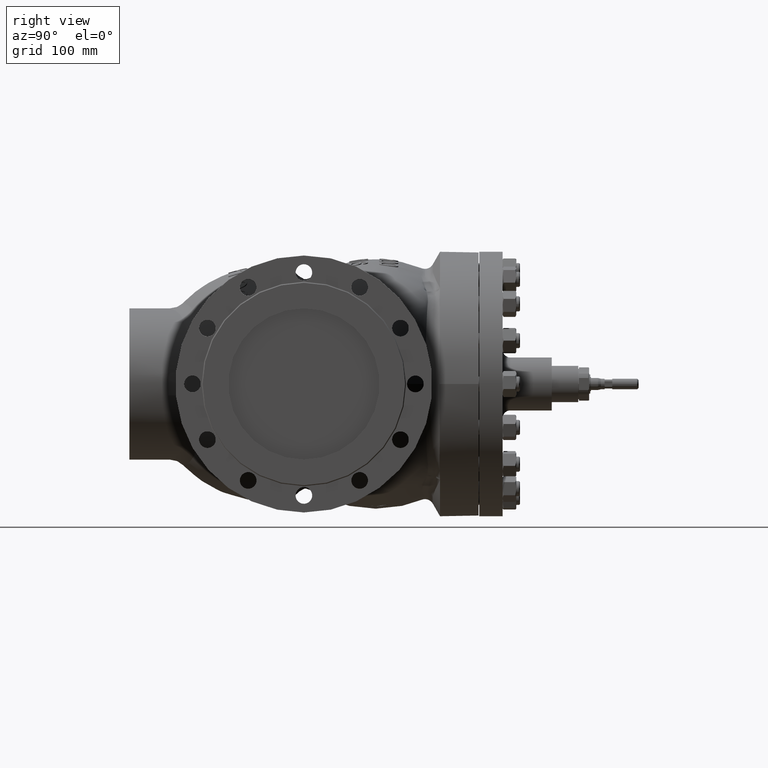
[diagram: clean part render]
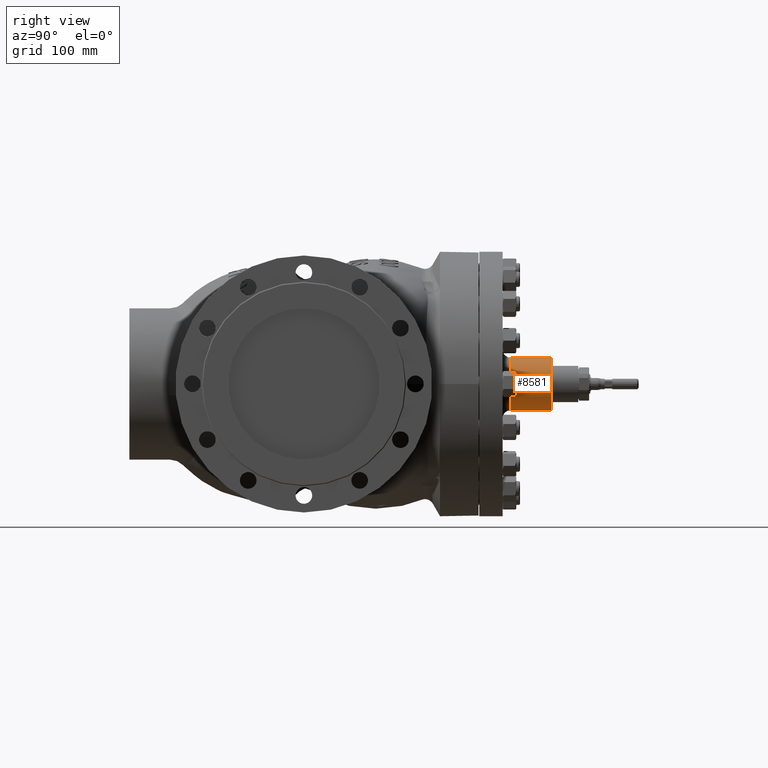
[diagram: same view with one face highlighted and labeled with its STEP entity id]
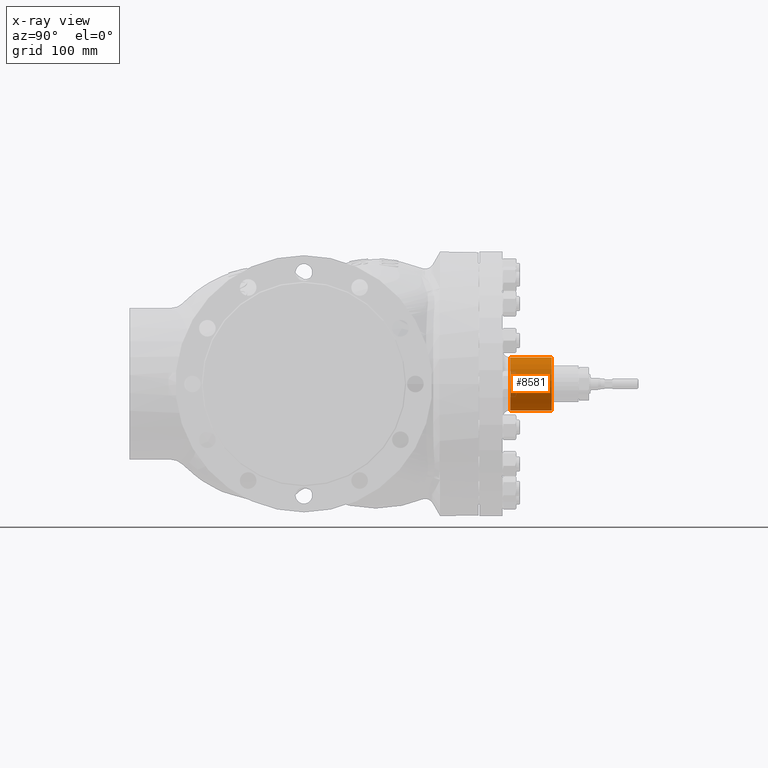
[diagram: x-ray of the same camera — body ghosted, the highlighted face saturated]
A machine part, right view. The second image highlights one B-rep face of the part: STEP entity #8581.
The next image is the same camera in x-ray: the body ghosted, the highlighted face saturated — about 9% of this face is hidden behind the body in this view.
In plain terms, the highlighted cylindrical surface (edge-blend (fillet) strip) has radius 35 mm, axis along (-0, 1, 0).
Its self-contained STEP definition (entity closure, byte-faithful):
#765 = AXIS2_PLACEMENT_3D ( 'NONE', #76322, #230589, #98496 ) ;
#7038 = CARTESIAN_POINT ( 'NONE',  ( 7.285838599102589800E-014, 363.0000000000000600, 1.387778780781445700E-014 ) ) ;
#8581 = ADVANCED_FACE ( 'NONE', ( #192877 ), #134114, .T. ) ;
#14212 = EDGE_LOOP ( 'NONE', ( #256242, #279951, #190798, #15735 ) ) ;
#14375 = CIRCLE ( 'NONE', #171961, 35.00000000000000000 ) ;
#14996 = VECTOR ( 'NONE', #282339, 1000.000000000000000 ) ;
#15735 = ORIENTED_EDGE ( 'NONE', *, *, #264294, .F. ) ;
#22785 = AXIS2_PLACEMENT_3D ( 'NONE', #7038, #183476, #50447 ) ;
#42084 = VERTEX_POINT ( 'NONE', #199840 ) ;
#50447 = DIRECTION ( 'NONE',  ( -1.117161918529064000E-015, 0.0000000000000000000, 1.000000000000000000 ) ) ;
#76229 = CARTESIAN_POINT ( 'NONE',  ( 1.251404949234631000E-013, 328.0000000000000000, -34.99999999999998600 ) ) ;
#76322 = CARTESIAN_POINT ( 'NONE',  ( 7.783968566369226900E-014, 328.0000000000000000, 1.387778780781445700E-014 ) ) ;
#83559 = DIRECTION ( 'NONE',  ( -1.423228477904675500E-016, 1.000000000000000000, 4.953303372370682800E-033 ) ) ;
#87281 = VERTEX_POINT ( 'NONE', #120961 ) ;
#98496 = DIRECTION ( 'NONE',  ( -1.117161918529064000E-015, 0.0000000000000000000, 1.000000000000000000 ) ) ;
#103056 = CIRCLE ( 'NONE', #765, 34.99999999999999300 ) ;
#108048 = LINE ( 'NONE', #181749, #159782 ) ;
#120961 = CARTESIAN_POINT ( 'NONE',  ( 1.251404949234631000E-013, 273.0000000000000000, -34.99999999999999300 ) ) ;
#132156 = LINE ( 'NONE', #283262, #14996 ) ;
#134114 = CYLINDRICAL_SURFACE ( 'NONE', #22785, 35.00000000000000000 ) ;
#152392 = EDGE_CURVE ( 'NONE', #205781, #87281, #14375, .T. ) ;
#159531 = DIRECTION ( 'NONE',  ( -1.423228477904675500E-016, 1.000000000000000000, 4.953303372370682800E-033 ) ) ;
#159782 = VECTOR ( 'NONE', #159531, 1000.000000000000000 ) ;
#171961 = AXIS2_PLACEMENT_3D ( 'NONE', #215645, #83559, #237813 ) ;
#173097 = EDGE_CURVE ( 'NONE', #87281, #192715, #132156, .T. ) ;
#181255 = CARTESIAN_POINT ( 'NONE',  ( 4.265289682941288300E-014, 273.0000000000000000, 35.00000000000001400 ) ) ;
#181749 = CARTESIAN_POINT ( 'NONE',  ( 3.375771884250866000E-014, 363.0000000000000600, 35.00000000000001400 ) ) ;
#183476 = DIRECTION ( 'NONE',  ( -1.423228477904675500E-016, 1.000000000000000000, 4.953303372370682800E-033 ) ) ;
#190798 = ORIENTED_EDGE ( 'NONE', *, *, #243623, .F. ) ;
#192715 = VERTEX_POINT ( 'NONE', #76229 ) ;
#192877 = FACE_OUTER_BOUND ( 'NONE', #14212, .T. ) ;
#199840 = CARTESIAN_POINT ( 'NONE',  ( 3.873901851517503700E-014, 328.0000000000000000, 35.00000000000000700 ) ) ;
#205781 = VERTEX_POINT ( 'NONE', #181255 ) ;
#215645 = CARTESIAN_POINT ( 'NONE',  ( 8.566744229216797400E-014, 273.0000000000000000, 1.387778780781445700E-014 ) ) ;
#230589 = DIRECTION ( 'NONE',  ( -1.423228477904675500E-016, 1.000000000000000000, 4.953303372370682800E-033 ) ) ;
#237813 = DIRECTION ( 'NONE',  ( 1.117161918529064200E-015, 0.0000000000000000000, -1.000000000000000000 ) ) ;
#243623 = EDGE_CURVE ( 'NONE', #42084, #192715, #103056, .T. ) ;
#256242 = ORIENTED_EDGE ( 'NONE', *, *, #152392, .T. ) ;
#264294 = EDGE_CURVE ( 'NONE', #205781, #42084, #108048, .T. ) ;
#279951 = ORIENTED_EDGE ( 'NONE', *, *, #173097, .T. ) ;
#282339 = DIRECTION ( 'NONE',  ( -1.423228477904675500E-016, 1.000000000000000000, 4.953303372370682800E-033 ) ) ;
#283262 = CARTESIAN_POINT ( 'NONE',  ( 1.162453169365588900E-013, 363.0000000000000600, -34.99999999999999300 ) ) ;